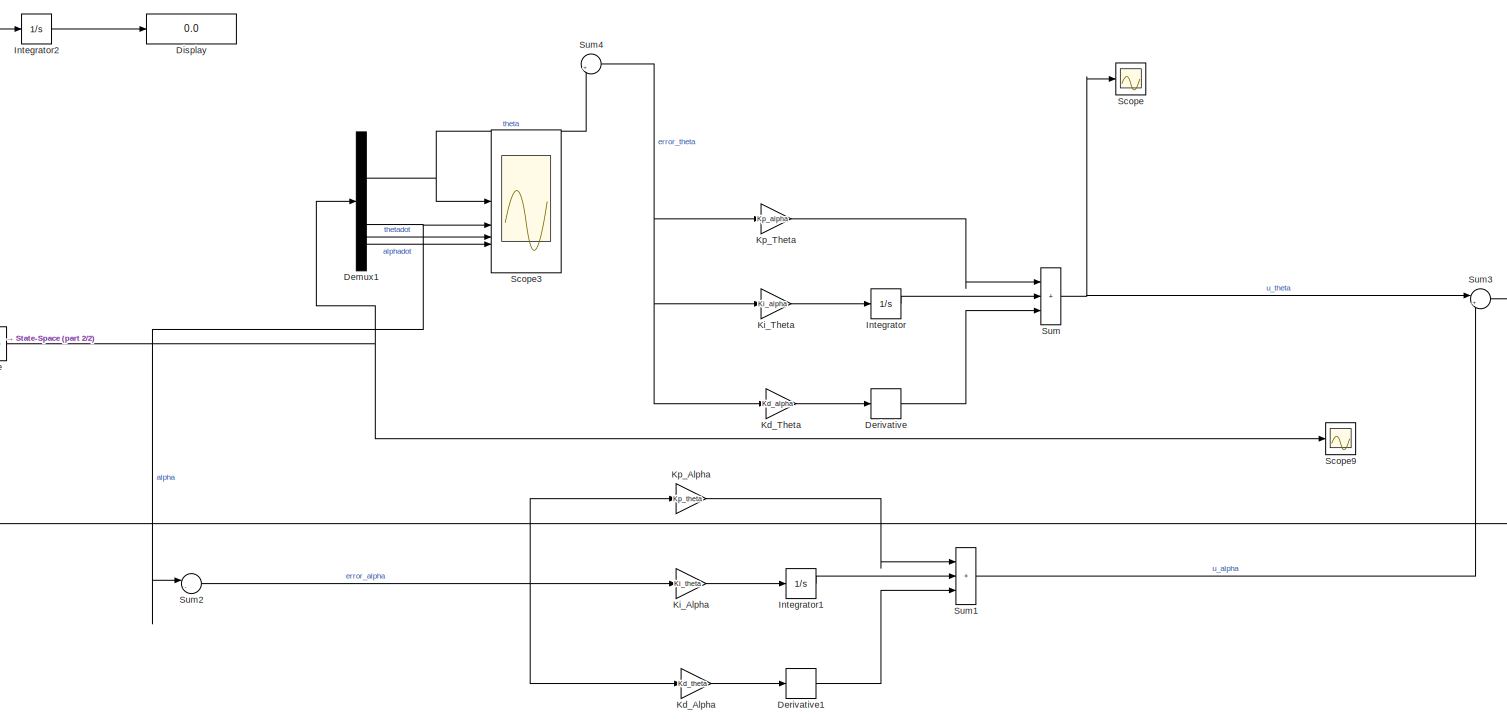
[diagram: root canvas - part 1/2, most of the canvas]
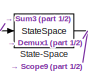
[diagram: root canvas - part 2/2, middle left region]
MODEL slx_eb0164d19035
KIND model
CONFIG AbsTol = auto
CONFIG EnableMultiTasking = off
CONFIG FixedStep = 0.01
CONFIG MaxStep = auto
CONFIG MinStep = auto
CONFIG RelTol = 1e-3
CONFIG SampleTimeConstraint = Unconstrained
CONFIG SolverName = FixedStepAuto
CONFIG StartTime = 0
CONFIG StopTime = 10
BLOCK [Demux] Demux1
BLOCK [Derivative] Derivative
BLOCK [Derivative] Derivative1
BLOCK [Display] Display
  Decimation = 1
BLOCK [Integrator] Integrator
BLOCK [Integrator] Integrator1
BLOCK [Integrator] Integrator2
BLOCK [Gain] Kd_Alpha
  Gain = Kd_theta
  Multiplication = Matrix(K*u)
BLOCK [Gain] Kd_Theta
  Gain = Kd_alpha
  Multiplication = Matrix(K*u)
BLOCK [Gain] Ki_Alpha
  Gain = Ki_theta
  Multiplication = Matrix(K*u)
BLOCK [Gain] Ki_Theta
  Gain = Ki_alpha
  Multiplication = Matrix(K*u)
BLOCK [Gain] Kp_Alpha
  Gain = Kp_theta
  Multiplication = Matrix(K*u)
BLOCK [Gain] Kp_Theta
  Gain = Kp_alpha
  Multiplication = Matrix(K*u)
BLOCK [Scope] Scope
  Floating = off
  NumInputPorts = 1
  ScopeSpecificationString = Simulink.scopes.TimeScopeBlockCfg('CurrentConfiguration', extmgr.ConfigurationSet(extmgr.Configuration('Core','General UI',true),extmgr.Configuration('Core','Source UI',true),extmgr.Configuration('Sources','WiredSimulink',true,'DataLoggingVariableName','ScopeData2'),extmgr.Configuration('Visuals','Time Domain',true,'SerializedDisplays',{struct('MinYLimReal','-6.72631','MaxYLimReal','3.24353','YLab...<+1434ch>
BLOCK [Scope] Scope3
  Floating = off
  NumInputPorts = 4
  ScopeSpecificationString = Simulink.scopes.TimeScopeBlockCfg('CurrentConfiguration', extmgr.ConfigurationSet(extmgr.Configuration('Core','General UI',true),extmgr.Configuration('Core','Source UI',true),extmgr.Configuration('Sources','WiredSimulink',true,'DataLoggingVariableName','ScopeData1'),extmgr.Configuration('Visuals','Time Domain',true,'SerializedDisplays',{struct('MinYLimReal','-1','MaxYLimReal','1','YLabelReal','','...<+1608ch>
BLOCK [Scope] Scope9
  Floating = off
  NumInputPorts = 1
  ScopeSpecificationString = Simulink.scopes.TimeScopeBlockCfg('CurrentConfiguration', extmgr.ConfigurationSet(extmgr.Configuration('Core','General UI',true),extmgr.Configuration('Core','Source UI',true),extmgr.Configuration('Sources','WiredSimulink',true),extmgr.Configuration('Visuals','Time Domain',true,'SerializedDisplays',{struct('MinYLimReal','-100','MaxYLimReal','100','YLabelReal','','MinYLimMag','0.00000','MaxYLimMag',...<+1549ch>
BLOCK [StateSpace] State-Space
  A = A
  B = B
  C = C
  D = D
  InitialCondition = [1 * pi / 180;1 * pi / 180;0;0]
BLOCK [Sum] Sum
  IconShape = rectangular
  Inputs = |+++
BLOCK [Sum] Sum1
  IconShape = rectangular
  Inputs = |+++
BLOCK [Sum] Sum2
  Inputs = |-+
BLOCK [Sum] Sum3
  Inputs = |++
BLOCK [Sum] Sum4
  Inputs = |+-
NET Demux1:1 -> Scope3:1, Sum4:2
NET Demux1:2 -> Scope3:2, Sum2:1
LINE Demux1:3 -> Scope3:3
LINE Demux1:4 -> Scope3:4
LINE Derivative1:1 -> Sum1:3
LINE Derivative:1 -> Sum:3
LINE Integrator1:1 -> Sum1:2
LINE Integrator2:1 -> Display:1
LINE Integrator:1 -> Sum:2
LINE Kd_Alpha:1 -> Derivative1:1
LINE Kd_Theta:1 -> Derivative:1
LINE Ki_Alpha:1 -> Integrator1:1
LINE Ki_Theta:1 -> Integrator:1
LINE Kp_Alpha:1 -> Sum1:1
LINE Kp_Theta:1 -> Sum:1
NET State-Space:1 -> Demux1:1, Scope9:1
LINE Sum1:1 -> Sum3:2
NET Sum2:1 -> Kd_Alpha:1, Ki_Alpha:1, Kp_Alpha:1
NET Sum3:1 -> Integrator2:1, State-Space:1
NET Sum4:1 -> Kd_Theta:1, Ki_Theta:1, Kp_Theta:1
NET Sum:1 -> Scope:1, Sum3:1
note: NET lines group one-source signal fan-out (src -> all destinations, sorted); 1:1 wires keep LINE
